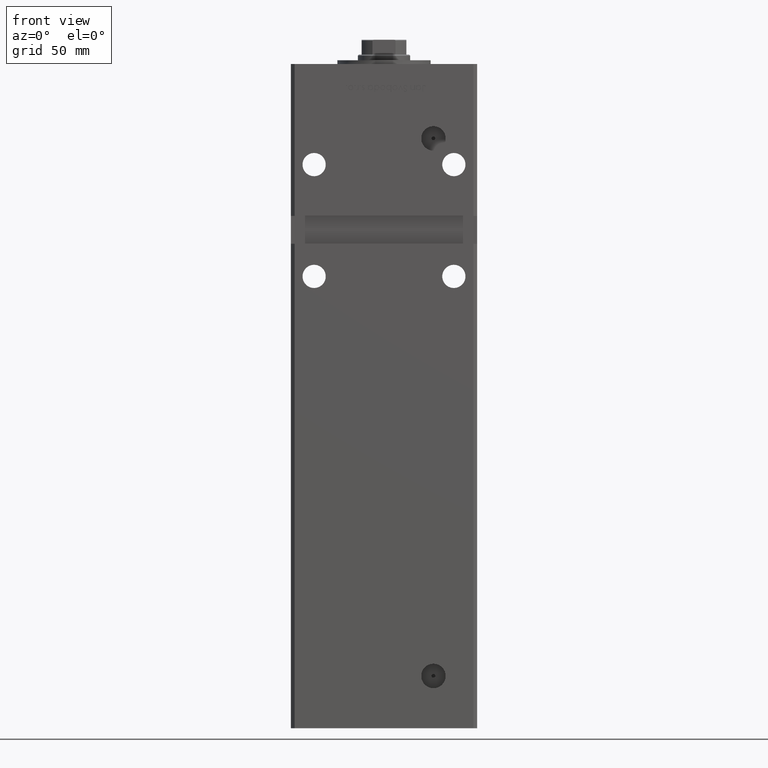
[diagram: clean part render]
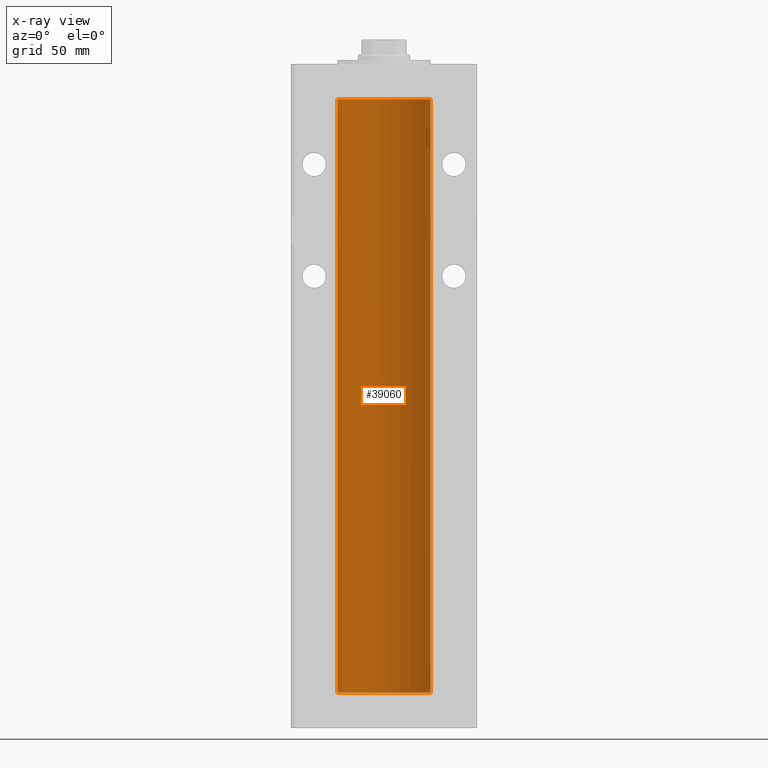
[diagram: x-ray — body ghosted, one internal face saturated and labeled with its STEP entity id]
A machine part, front view, then the same camera in x-ray: the body is ghosted and one INTERNAL B-rep face — a face not visible from any outside direction — is saturated and labeled: STEP entity #39060.
In plain terms, the highlighted cylindrical surface (partial cylindrical patch) has radius 25 mm, axis along (-0, -0, -1).
Its self-contained STEP definition (entity closure, byte-faithful):
#231 = CARTESIAN_POINT ( 'NONE',  ( 25.00000000000000000, 3.061616997868383043E-15, 318.5000000000000000 ) ) ;
#916 = DIRECTION ( 'NONE',  ( -0.000000000000000000, 0.000000000000000000, 1.000000000000000000 ) ) ;
#1050 = EDGE_CURVE ( 'NONE', #52920, #23601, #7375, .T. ) ;
#2163 = EDGE_CURVE ( 'NONE', #28806, #52920, #30852, .T. ) ;
#6581 = CARTESIAN_POINT ( 'NONE',  ( -25.00000000000000000, 0.000000000000000000, 318.5000000000000000 ) ) ;
#7375 = LINE ( 'NONE', #6581, #47112 ) ;
#7565 = CARTESIAN_POINT ( 'NONE',  ( -25.00000000000000000, 0.000000000000000000, 0.000000000000000000 ) ) ;
#10585 = ORIENTED_EDGE ( 'NONE', *, *, #51579, .F. ) ;
#11612 = CARTESIAN_POINT ( 'NONE',  ( 0.000000000000000000, 0.000000000000000000, 318.5000000000000000 ) ) ;
#14161 = CARTESIAN_POINT ( 'NONE',  ( 25.00000000000000000, 3.061616997868383043E-15, 0.000000000000000000 ) ) ;
#14624 = DIRECTION ( 'NONE',  ( -0.000000000000000000, -0.000000000000000000, -1.000000000000000000 ) ) ;
#15087 = CARTESIAN_POINT ( 'NONE',  ( 25.00000000000000000, 3.061616997868383043E-15, 318.5000000000000000 ) ) ;
#15652 = DIRECTION ( 'NONE',  ( -0.000000000000000000, -0.000000000000000000, -1.000000000000000000 ) ) ;
#17275 = VECTOR ( 'NONE', #19922, 1000.000000000000000 ) ;
#17300 = DIRECTION ( 'NONE',  ( 1.000000000000000000, 0.000000000000000000, 0.000000000000000000 ) ) ;
#19922 = DIRECTION ( 'NONE',  ( -0.000000000000000000, -0.000000000000000000, -1.000000000000000000 ) ) ;
#20349 = ORIENTED_EDGE ( 'NONE', *, *, #1050, .T. ) ;
#21635 = ORIENTED_EDGE ( 'NONE', *, *, #2163, .T. ) ;
#23601 = VERTEX_POINT ( 'NONE', #7565 ) ;
#28806 = VERTEX_POINT ( 'NONE', #231 ) ;
#29814 = EDGE_LOOP ( 'NONE', ( #48886, #21635, #20349, #10585 ) ) ;
#30852 = CIRCLE ( 'NONE', #36866, 25.00000000000000000 ) ;
#32520 = VERTEX_POINT ( 'NONE', #14161 ) ;
#33449 = CARTESIAN_POINT ( 'NONE',  ( 0.000000000000000000, 0.000000000000000000, 0.000000000000000000 ) ) ;
#33594 = CIRCLE ( 'NONE', #46500, 25.00000000000000000 ) ;
#36866 = AXIS2_PLACEMENT_3D ( 'NONE', #45826, #916, #17300 ) ;
#37496 = DIRECTION ( 'NONE',  ( -0.000000000000000000, 0.000000000000000000, 1.000000000000000000 ) ) ;
#39060 = ADVANCED_FACE ( 'NONE', ( #45690 ), #50226, .F. ) ;
#39379 = AXIS2_PLACEMENT_3D ( 'NONE', #11612, #15652, #48464 ) ;
#41261 = DIRECTION ( 'NONE',  ( 1.000000000000000000, 0.000000000000000000, 0.000000000000000000 ) ) ;
#45690 = FACE_OUTER_BOUND ( 'NONE', #29814, .T. ) ;
#45826 = CARTESIAN_POINT ( 'NONE',  ( 0.000000000000000000, 0.000000000000000000, 318.5000000000000000 ) ) ;
#46500 = AXIS2_PLACEMENT_3D ( 'NONE', #33449, #37496, #41261 ) ;
#47112 = VECTOR ( 'NONE', #14624, 1000.000000000000000 ) ;
#47644 = LINE ( 'NONE', #15087, #17275 ) ;
#48464 = DIRECTION ( 'NONE',  ( -1.000000000000000000, 0.000000000000000000, 0.000000000000000000 ) ) ;
#48886 = ORIENTED_EDGE ( 'NONE', *, *, #52709, .F. ) ;
#50226 = CYLINDRICAL_SURFACE ( 'NONE', #39379, 25.00000000000000000 ) ;
#51579 = EDGE_CURVE ( 'NONE', #32520, #23601, #33594, .T. ) ;
#52513 = CARTESIAN_POINT ( 'NONE',  ( -25.00000000000000000, 0.000000000000000000, 318.5000000000000000 ) ) ;
#52709 = EDGE_CURVE ( 'NONE', #28806, #32520, #47644, .T. ) ;
#52920 = VERTEX_POINT ( 'NONE', #52513 ) ;